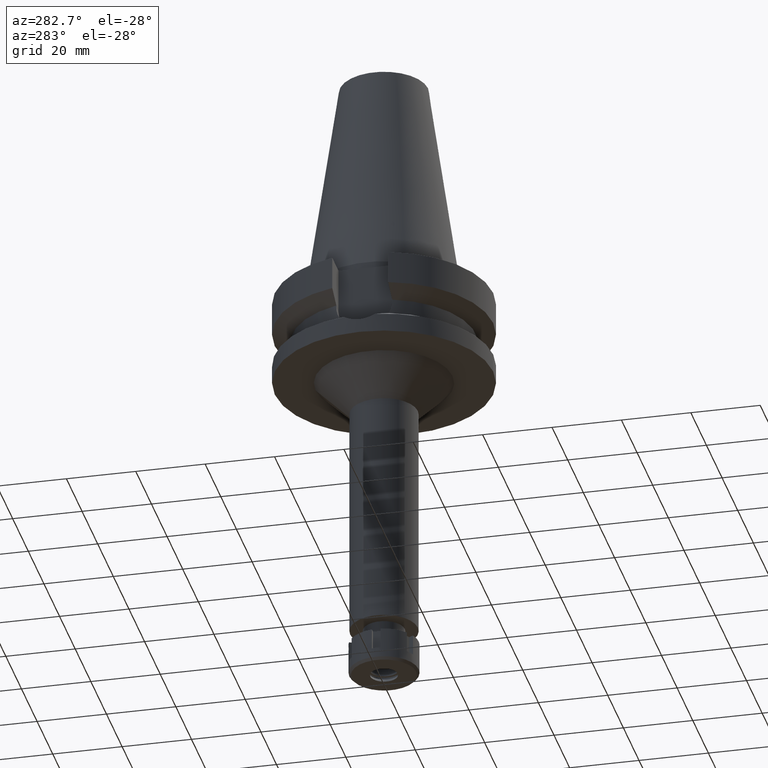
[diagram: clean part render]
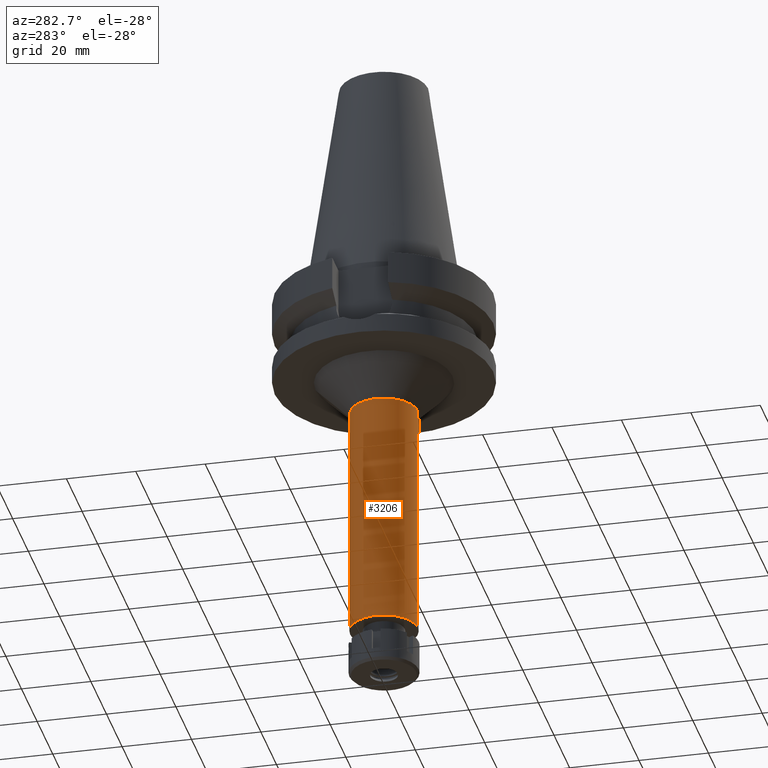
[diagram: same view with one face highlighted and labeled with its STEP entity id]
A machine part, auxiliary view. The second image highlights one B-rep face of the part: STEP entity #3206.
In plain terms, the highlighted cylindrical surface (edge-blend (fillet) strip) has radius 9.75 mm, axis along (0, 0, -1).
Its self-contained STEP definition (entity closure, byte-faithful):
#4 = DIRECTION ( 'NONE',  ( 0.0000000000000000000, 0.0000000000000000000, -1.000000000000000000 ) ) ;
#139 = ORIENTED_EDGE ( 'NONE', *, *, #939, .T. ) ;
#267 = CARTESIAN_POINT ( 'NONE',  ( 0.0000000000000000000, 9.750000000000000000, -37.00000000000000000 ) ) ;
#426 = CARTESIAN_POINT ( 'NONE',  ( 0.0000000000000000000, 9.750000000000000000, -106.0000000000000000 ) ) ;
#434 = VECTOR ( 'NONE', #982, 1000.000000000000000 ) ;
#489 = VERTEX_POINT ( 'NONE', #1720 ) ;
#521 = DIRECTION ( 'NONE',  ( 0.0000000000000000000, -1.000000000000000000, 0.0000000000000000000 ) ) ;
#598 = EDGE_CURVE ( 'NONE', #1936, #489, #2975, .T. ) ;
#603 = CARTESIAN_POINT ( 'NONE',  ( 0.0000000000000000000, 0.0000000000000000000, -37.00000000000000000 ) ) ;
#717 = CARTESIAN_POINT ( 'NONE',  ( 0.0000000000000000000, 2.136028947072999920E-14, -106.0000000000000000 ) ) ;
#790 = CARTESIAN_POINT ( 'NONE',  ( 0.0000000000000000000, 9.750000000000000000, -37.00000000000000000 ) ) ;
#799 = CYLINDRICAL_SURFACE ( 'NONE', #2578, 9.750000000000000000 ) ;
#835 = ORIENTED_EDGE ( 'NONE', *, *, #598, .T. ) ;
#939 = EDGE_CURVE ( 'NONE', #1541, #2239, #3326, .T. ) ;
#982 = DIRECTION ( 'NONE',  ( 0.0000000000000000000, 0.0000000000000000000, -1.000000000000000000 ) ) ;
#994 = ORIENTED_EDGE ( 'NONE', *, *, #3435, .F. ) ;
#1541 = VERTEX_POINT ( 'NONE', #2778 ) ;
#1669 = LINE ( 'NONE', #267, #2427 ) ;
#1720 = CARTESIAN_POINT ( 'NONE',  ( 0.0000000000000000000, -9.750000000000000000, -106.0000000000000000 ) ) ;
#1845 = DIRECTION ( 'NONE',  ( 0.0000000000000000000, 1.000000000000000000, 0.0000000000000000000 ) ) ;
#1927 = CARTESIAN_POINT ( 'NONE',  ( 0.0000000000000000000, 2.136028947072999920E-14, 74.42000000000000171 ) ) ;
#1936 = VERTEX_POINT ( 'NONE', #426 ) ;
#2040 = EDGE_LOOP ( 'NONE', ( #835, #994, #139, #2219 ) ) ;
#2219 = ORIENTED_EDGE ( 'NONE', *, *, #2716, .T. ) ;
#2239 = VERTEX_POINT ( 'NONE', #790 ) ;
#2394 = AXIS2_PLACEMENT_3D ( 'NONE', #717, #2958, #1845 ) ;
#2427 = VECTOR ( 'NONE', #3638, 1000.000000000000000 ) ;
#2578 = AXIS2_PLACEMENT_3D ( 'NONE', #1927, #3043, #521 ) ;
#2716 = EDGE_CURVE ( 'NONE', #2239, #1936, #1669, .T. ) ;
#2778 = CARTESIAN_POINT ( 'NONE',  ( 0.0000000000000000000, -9.750000000000000000, -37.00000000000000000 ) ) ;
#2951 = LINE ( 'NONE', #3241, #434 ) ;
#2958 = DIRECTION ( 'NONE',  ( 0.0000000000000000000, 0.0000000000000000000, 1.000000000000000000 ) ) ;
#2975 = CIRCLE ( 'NONE', #2394, 9.750000000000000000 ) ;
#3043 = DIRECTION ( 'NONE',  ( 0.0000000000000000000, 0.0000000000000000000, -1.000000000000000000 ) ) ;
#3179 = DIRECTION ( 'NONE',  ( 0.0000000000000000000, -1.000000000000000000, 0.0000000000000000000 ) ) ;
#3206 = ADVANCED_FACE ( 'NONE', ( #3316 ), #799, .T. ) ;
#3241 = CARTESIAN_POINT ( 'NONE',  ( 0.0000000000000000000, -9.750000000000000000, -37.00000000000000000 ) ) ;
#3316 = FACE_OUTER_BOUND ( 'NONE', #2040, .T. ) ;
#3326 = CIRCLE ( 'NONE', #3623, 9.750000000000000000 ) ;
#3435 = EDGE_CURVE ( 'NONE', #1541, #489, #2951, .T. ) ;
#3623 = AXIS2_PLACEMENT_3D ( 'NONE', #603, #4, #3179 ) ;
#3638 = DIRECTION ( 'NONE',  ( 0.0000000000000000000, 0.0000000000000000000, -1.000000000000000000 ) ) ;